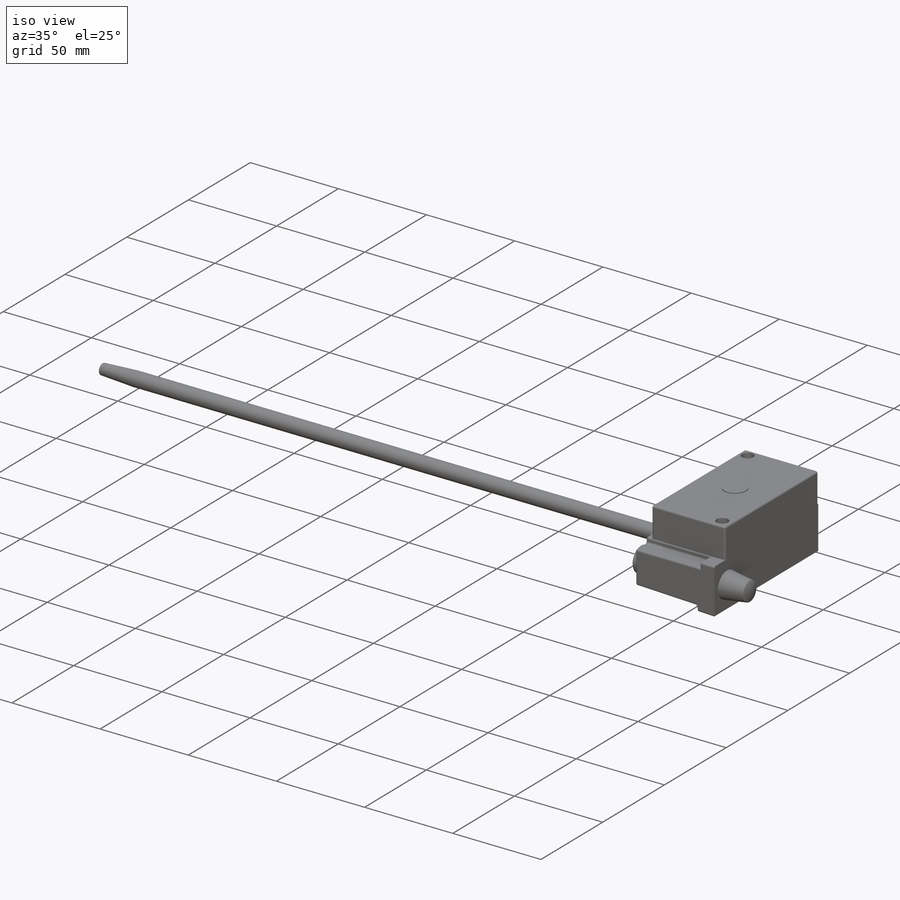
[diagram: iso view]
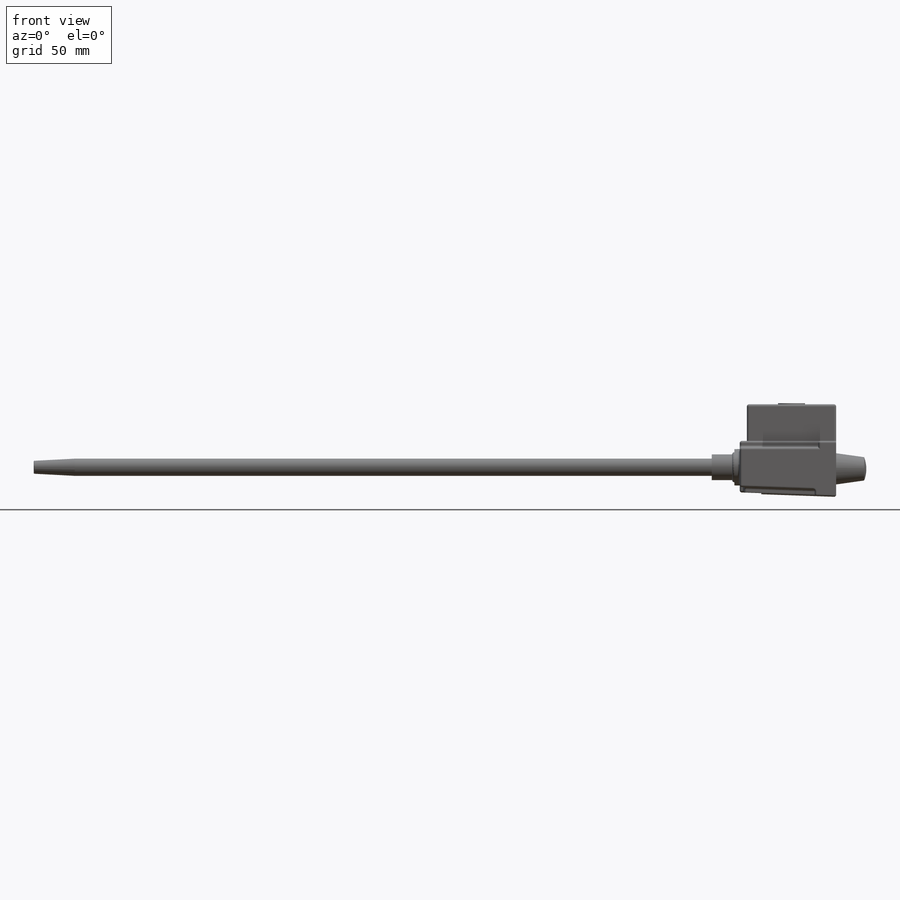
[diagram: front view]
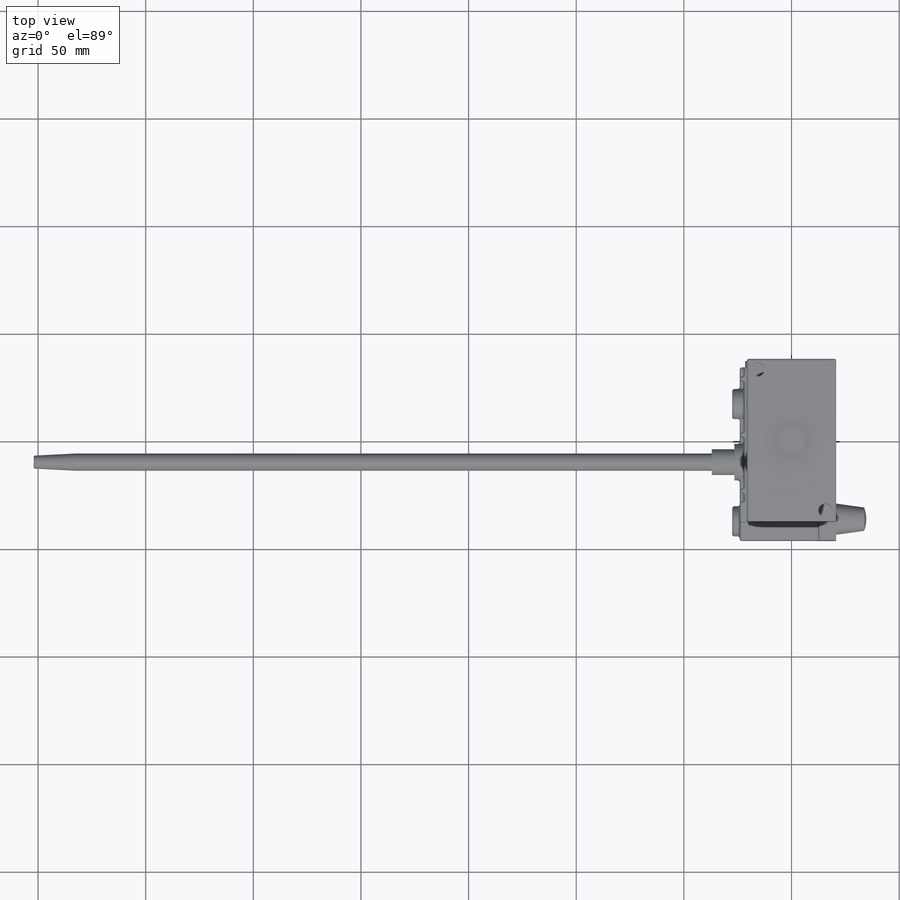
[diagram: top view]
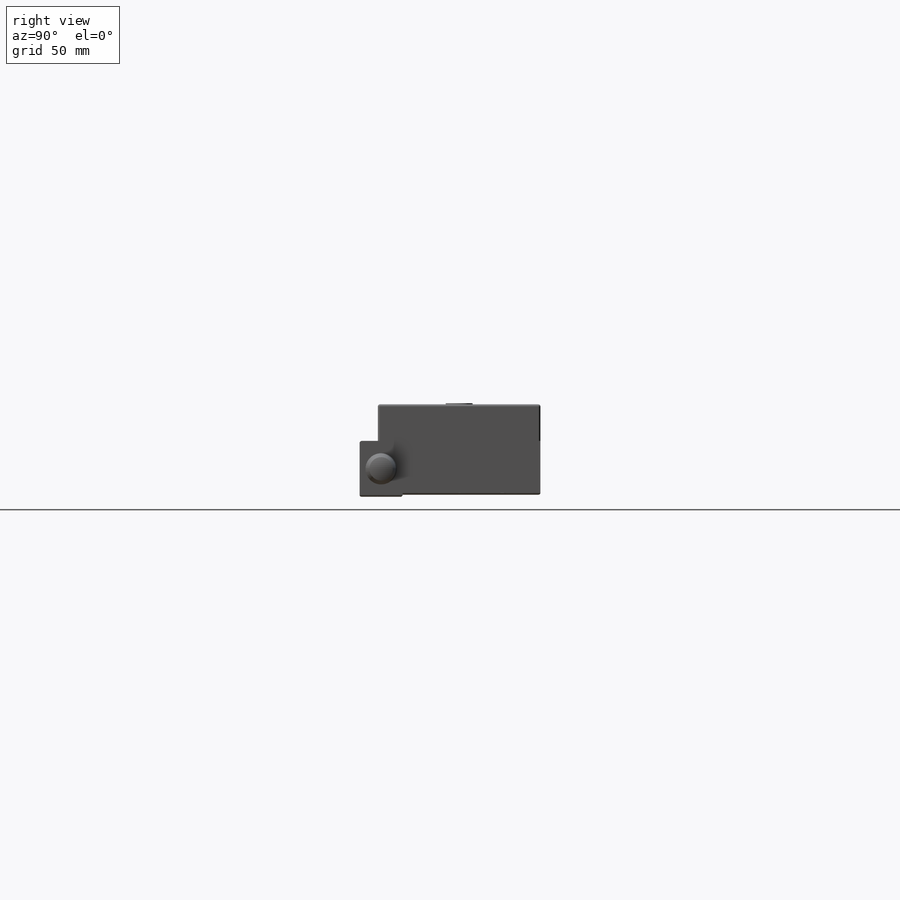
[diagram: right view]
SOLIDWORKS PART (.sldprt)
format: sldprt  version: not decoded by parser v0  size: 965,120 bytes
history: native  units: mm
features: sketch x19, extrude x11, cut_extrude x8, plane x3, fillet x3, material x1, dome x1 (+8 scaffold rows collapsed)
feature tree (54):
  scaffold x8  (default folders/planes/origin — collapsed)
  material  "Materiál <není určen>"
  plane  "Přední rovina"
  plane  "Horní rovina"
  plane  "Pravá rovina"
  sketch  "Skica1"  dims[D1=41.5mm D2=75.5mm]
  extrude  "Přidat vysunutím1"  Depth=17mm
  sketch  "Skica2"  dims[D2=6.5mm D1=5.0mm]
  cut_extrude  "Odebrat vysunutím1"  Depth=9mm
  sketch  "Skica3"  dims[D1=12.5mm]
  extrude  "Přidat vysunutím2"  Depth=0.5mm
  sketch  "Skica4"  dims[D1=42.8mm D2=3.5mm D3=8.0mm D4=7.4mm D5=20.0mm D6=84.0mm]
  extrude  "Přidat vysunutím3"  Depth=26mm
  sketch  "Skica5"  dims[D1=34.5mm D2=3.0mm]
  cut_extrude  "Odebrat vysunutím2"  Depth=8.5mm
  sketch  "Skica6"  dims[D1=14.0mm D2=17.0mm D3=18.0mm D4=2.0mm D5=2.0mm D6=2.0mm D7=8.0mm D8=8.25mm D9=17.0mm D10=27.0mm D11=6.5mm D12=28.0mm D13=28.0mm]
  extrude  "Přidat vysunutím4"  Depth=2mm
  sketch  "Skica7"  dims[D1=3.0mm D2=10.0mm]
  cut_extrude  "Odebrat vysunutím3"  Depth=18mm
  sketch  "Skica8"  dims[D1=13.0mm D2=54.0mm]
  cut_extrude  "Odebrat vysunutím4"  Depth=1mm
  sketch  "Skica9"
  cut_extrude  "Odebrat vysunutím5"  Depth=3mm
  sketch  "Skica10"  dims[D1=9.0mm]
  extrude  "Přidat vysunutím5"  Depth=3.5mm
  sketch  "Skica11"
  extrude  "Přidat vysunutím6"  Depth=2.5mm
  sketch  "Skica12"  dims[D1=12.0mm]
  extrude  "Přidat vysunutím7"  Depth=10.5mm
  sketch  "Skica13"  dims[D1=8.0mm]
  extrude  "Přidat vysunutím8"  Depth=315mm
  sketch  "Skica14"
  extrude  "Přidat vysunutím9"  Depth=24mm
  sketch  "Skica15"  dims[D1=10.0mm D2=10.0mm D3=14.8mm]
  cut_extrude  "Odebrat vysunutím6"  Depth=5mm
  sketch  "Skica16"  dims[c1.D1=7.0mm c1.D3=7.0mm c1.D2=4.0mm c2.D3=19.0mm]
  extrude  "Přidat vysunutím10"  Depth=3mm
  sketch  "Skica17"  dims[D1=2.0mm]
  cut_extrude  "Odebrat vysunutím7"  Depth=1mm
  fillet  "Zaoblit1"  Radius=1mm
  fillet  "Zaoblit2"  Radius=1mm
  sketch  "Skica18"  dims[D1=6.0mm]
  cut_extrude  "Odebrat vysunutím8"  [1 undecoded]
  fillet  "Zaoblit3"  Radius=0.5mm
  sketch  "Skica19"  dims[D1=14.5mm]
  extrude  "Přidat vysunutím11"  Depth=13mm
  dome  "Kopule1"
decode coverage: 37 of 42 modeling features carry decoded parameters
note: 1 parameter value undecoded
note: suppression state not decoded; provenance and decode notes live in map.json
